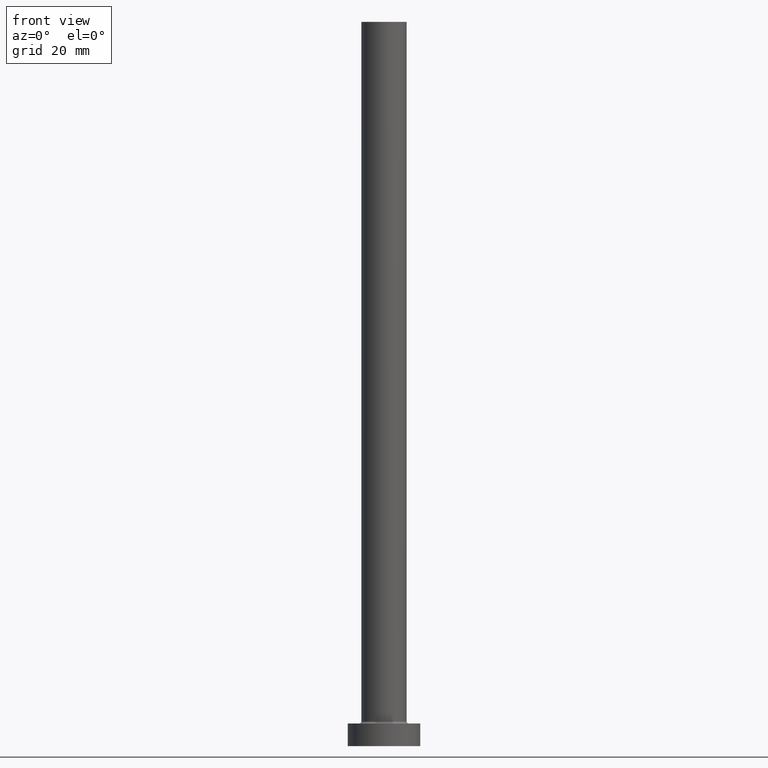
[diagram: clean part render]
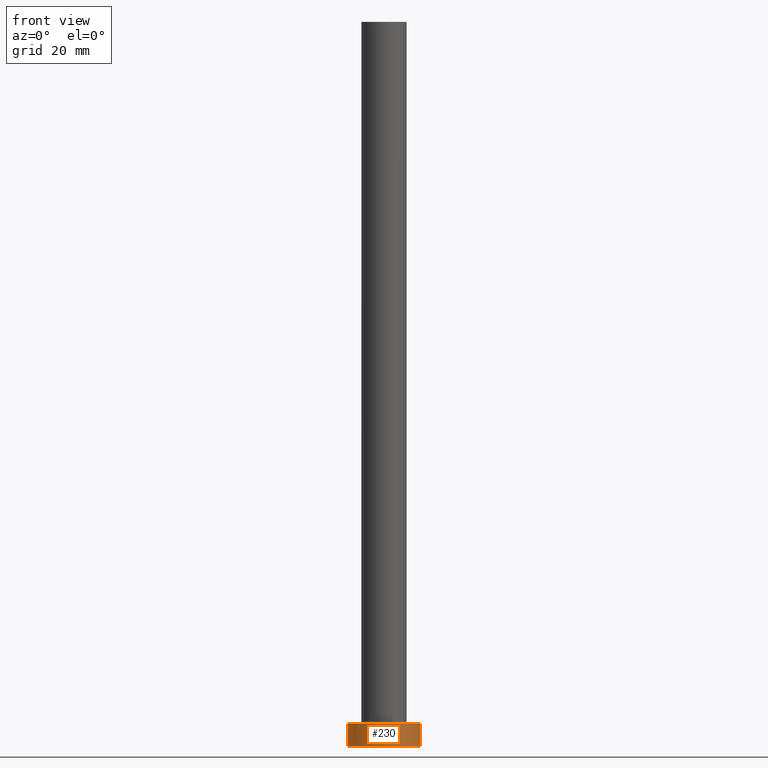
[diagram: same view with one face highlighted and labeled with its STEP entity id]
A machine part, front view. The second image highlights one B-rep face of the part: STEP entity #230.
In plain terms, the highlighted cylindrical surface (edge-blend (fillet) strip) has radius 8 mm, axis along (-0, -0, -1).
Its self-contained STEP definition (entity closure, byte-faithful):
#6 = CIRCLE ( 'NONE', #257, 8.000000000000000000 ) ;
#11 = EDGE_CURVE ( 'NONE', #94, #293, #193, .T. ) ;
#13 = ORIENTED_EDGE ( 'NONE', *, *, #353, .T. ) ;
#20 = CARTESIAN_POINT ( 'NONE',  ( -8.000000000000000000, 0.000000000000000000, 5.000000000000000000 ) ) ;
#32 = DIRECTION ( 'NONE',  ( 1.000000000000000000, 0.000000000000000000, 0.000000000000000000 ) ) ;
#49 = AXIS2_PLACEMENT_3D ( 'NONE', #239, #207, #32 ) ;
#94 = VERTEX_POINT ( 'NONE', #320 ) ;
#120 = ORIENTED_EDGE ( 'NONE', *, *, #361, .F. ) ;
#123 = VECTOR ( 'NONE', #136, 1000.000000000000000 ) ;
#131 = FACE_OUTER_BOUND ( 'NONE', #364, .T. ) ;
#136 = DIRECTION ( 'NONE',  ( -0.000000000000000000, -0.000000000000000000, -1.000000000000000000 ) ) ;
#165 = CARTESIAN_POINT ( 'NONE',  ( 8.000000000000000000, 9.797174393178825657E-16, 0.000000000000000000 ) ) ;
#193 = CIRCLE ( 'NONE', #49, 8.000000000000000000 ) ;
#201 = ORIENTED_EDGE ( 'NONE', *, *, #11, .F. ) ;
#207 = DIRECTION ( 'NONE',  ( 0.000000000000000000, 0.000000000000000000, 1.000000000000000000 ) ) ;
#227 = DIRECTION ( 'NONE',  ( -0.000000000000000000, -0.000000000000000000, -1.000000000000000000 ) ) ;
#230 = ADVANCED_FACE ( 'NONE', ( #131 ), #232, .T. ) ;
#232 = CYLINDRICAL_SURFACE ( 'NONE', #355, 8.000000000000000000 ) ;
#235 = CARTESIAN_POINT ( 'NONE',  ( -8.000000000000000000, 0.000000000000000000, 0.000000000000000000 ) ) ;
#239 = CARTESIAN_POINT ( 'NONE',  ( 0.000000000000000000, 0.000000000000000000, 5.000000000000000000 ) ) ;
#245 = EDGE_CURVE ( 'NONE', #94, #268, #336, .T. ) ;
#252 = VECTOR ( 'NONE', #407, 1000.000000000000000 ) ;
#256 = ORIENTED_EDGE ( 'NONE', *, *, #245, .T. ) ;
#257 = AXIS2_PLACEMENT_3D ( 'NONE', #373, #379, #348 ) ;
#262 = CARTESIAN_POINT ( 'NONE',  ( 0.000000000000000000, 0.000000000000000000, 5.000000000000000000 ) ) ;
#268 = VERTEX_POINT ( 'NONE', #235 ) ;
#269 = CARTESIAN_POINT ( 'NONE',  ( 8.000000000000000000, 9.797174393178825657E-16, 5.000000000000000000 ) ) ;
#271 = VERTEX_POINT ( 'NONE', #165 ) ;
#293 = VERTEX_POINT ( 'NONE', #414 ) ;
#320 = CARTESIAN_POINT ( 'NONE',  ( -8.000000000000000000, 0.000000000000000000, 5.000000000000000000 ) ) ;
#336 = LINE ( 'NONE', #20, #252 ) ;
#348 = DIRECTION ( 'NONE',  ( 1.000000000000000000, 0.000000000000000000, 0.000000000000000000 ) ) ;
#353 = EDGE_CURVE ( 'NONE', #268, #271, #6, .T. ) ;
#355 = AXIS2_PLACEMENT_3D ( 'NONE', #262, #227, #369 ) ;
#361 = EDGE_CURVE ( 'NONE', #293, #271, #420, .T. ) ;
#364 = EDGE_LOOP ( 'NONE', ( #120, #201, #256, #13 ) ) ;
#369 = DIRECTION ( 'NONE',  ( -1.000000000000000000, 0.000000000000000000, 0.000000000000000000 ) ) ;
#373 = CARTESIAN_POINT ( 'NONE',  ( 0.000000000000000000, 0.000000000000000000, 0.000000000000000000 ) ) ;
#379 = DIRECTION ( 'NONE',  ( 0.000000000000000000, 0.000000000000000000, 1.000000000000000000 ) ) ;
#407 = DIRECTION ( 'NONE',  ( -0.000000000000000000, -0.000000000000000000, -1.000000000000000000 ) ) ;
#414 = CARTESIAN_POINT ( 'NONE',  ( 8.000000000000000000, 9.797174393178825657E-16, 5.000000000000000000 ) ) ;
#420 = LINE ( 'NONE', #269, #123 ) ;